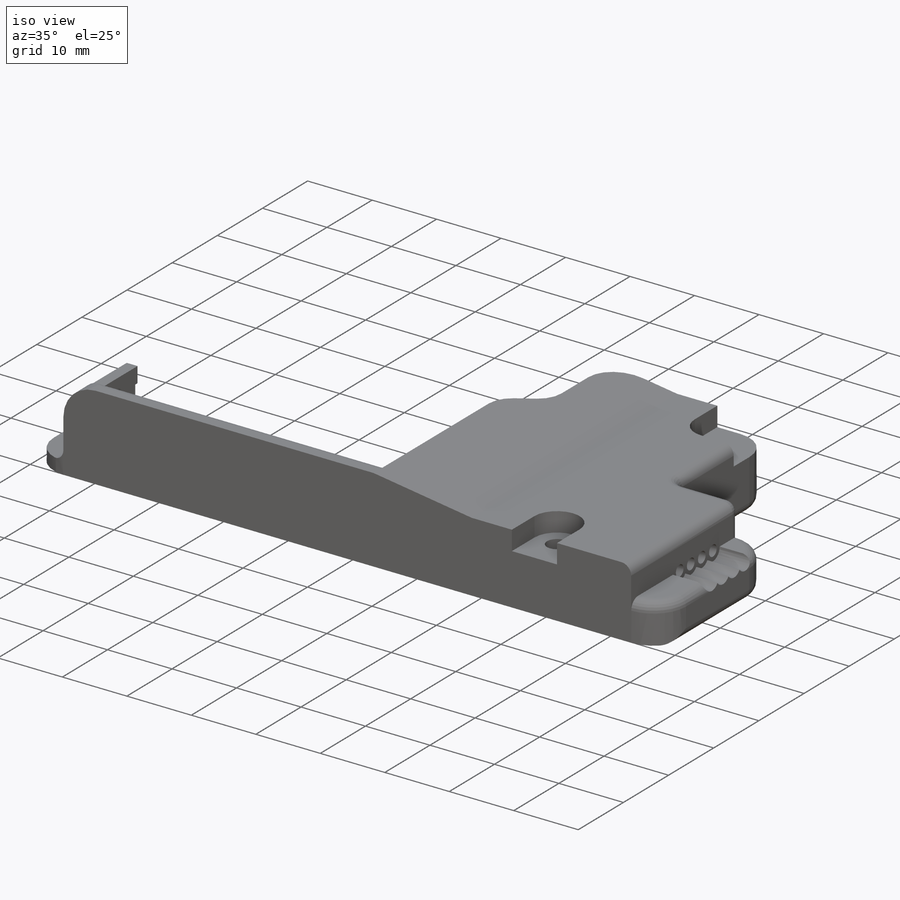
[diagram: iso view]
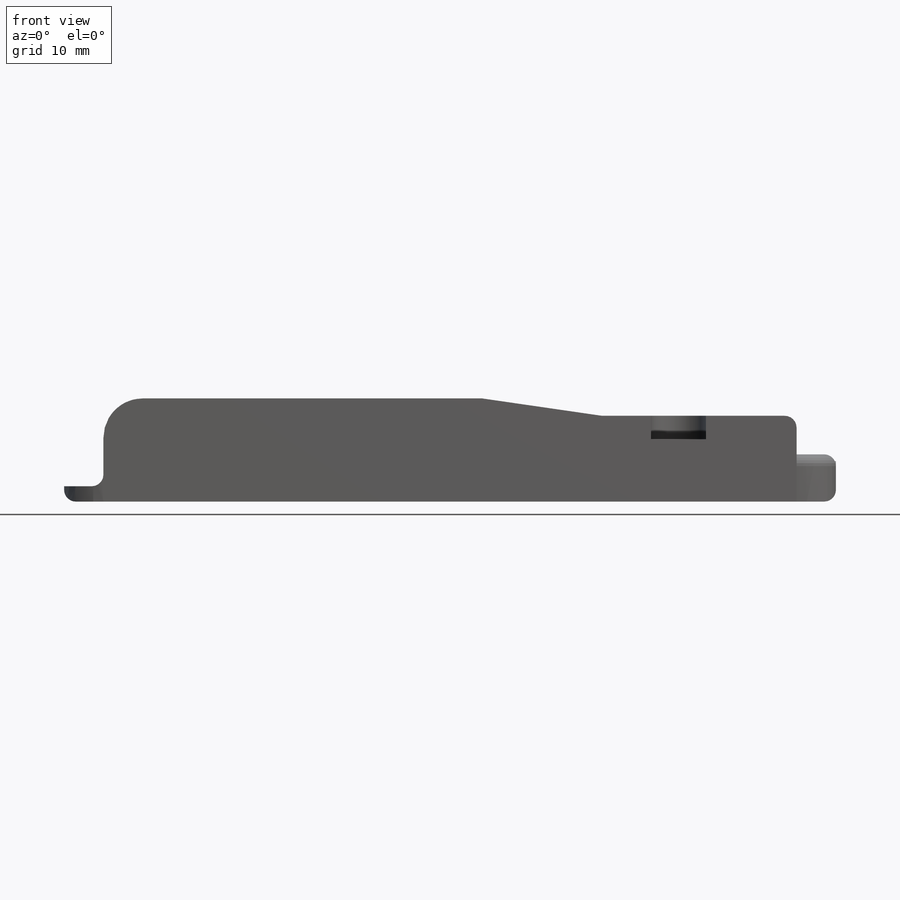
[diagram: front view]
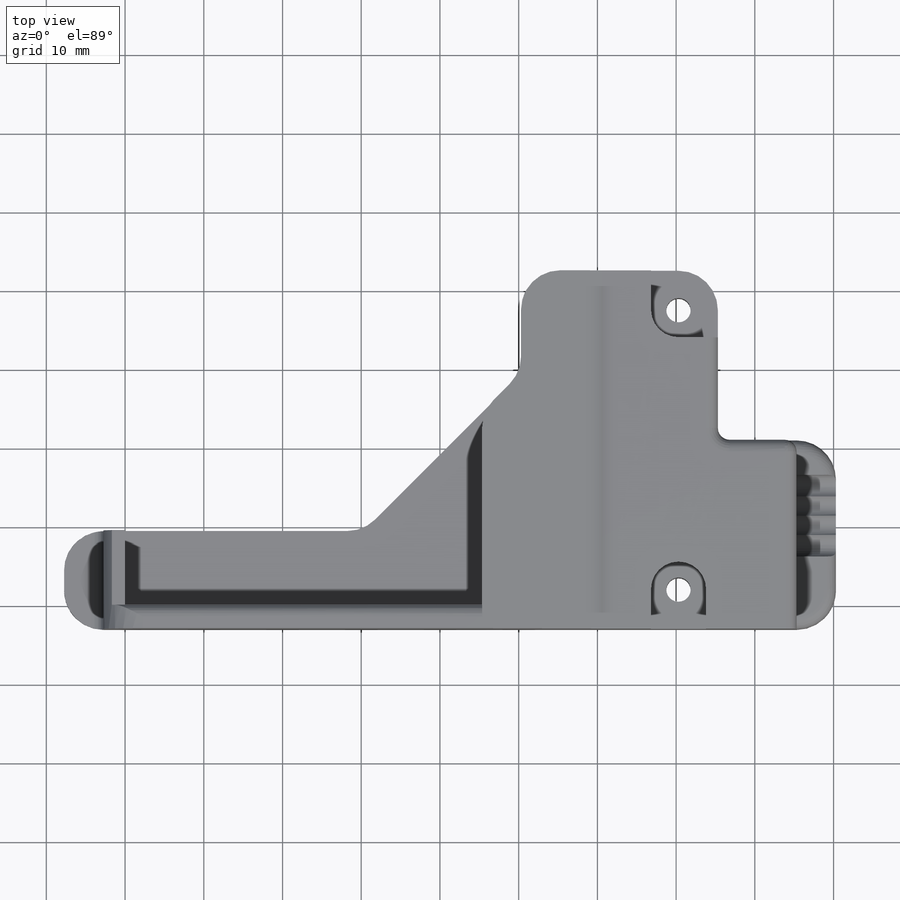
[diagram: top view]
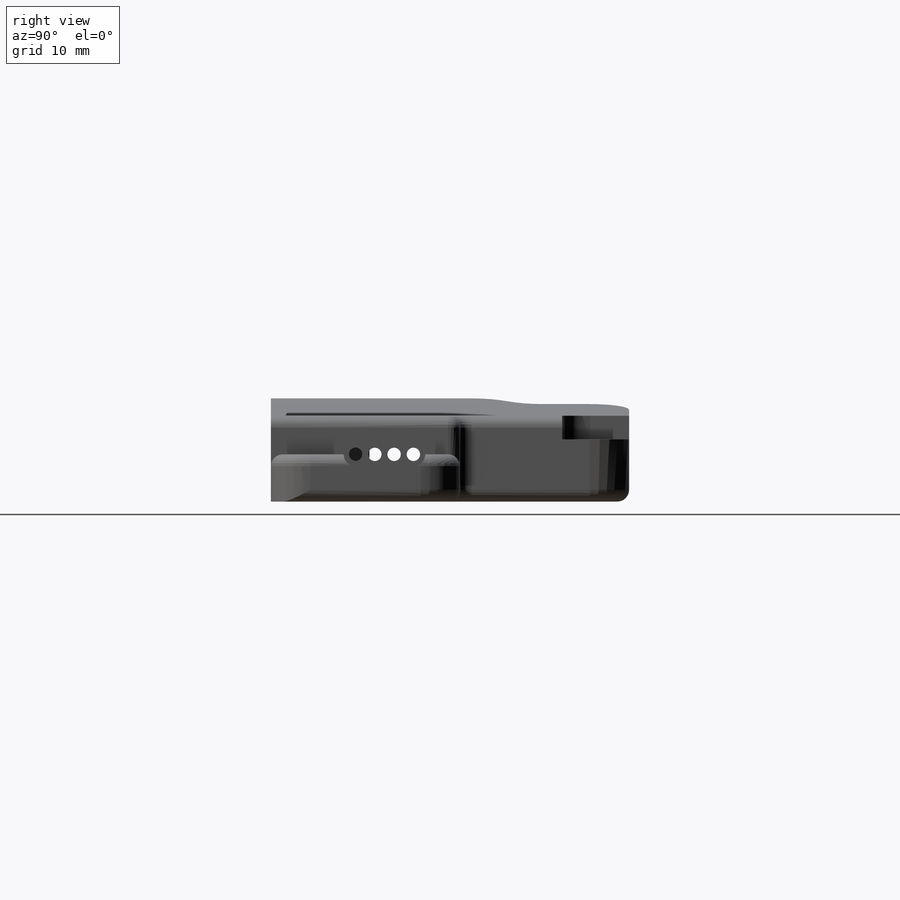
[diagram: right view]
SOLIDWORKS PART (.sldprt)
format: sldprt  version: not decoded by parser v0  size: 678,912 bytes
history: native  units: mm
features: sketch x21, cut_extrude x13, extrude x8, plane x3, fillet x2, material x1 (+12 scaffold rows collapsed; 1 parser-record rows omitted)
feature tree (61):
  scaffold x12  (default folders/planes/origin — collapsed)
  material  "Material <not specified>"
  sketch  "Sketch1"  dims[c1.D1=4.8mm c1.D2=62.5mm c1.D3=5.0mm c1.D4=0.35mm c1.D5=2.4mm c1.D6=2.4mm c1.D7=2.4mm c2.D6=2.4mm c2.D8=3.0mm c2.D9=2.4mm c2.D10=6.0mm c2.D2=2.4mm c3.D8=2.4mm c3.D11=2.5mm c3.D12=63.25mm c3.D3=4.5mm]
  extrude  "Boss-Extrude1"  Depth=39.5mm
  sketch  "Sketch2"
  extrude  "Boss-Extrude2"  Depth=3mm
  sketch  "Sketch5"  dims[D1=15.0mm]
  extrude  "Boss-Extrude3"  Depth=3mm
  sketch  "Sketch6"  dims[c1.D1=30.0mm c1.D2=~36.02727mm c2.D2=45.0deg c2.D3=10.0mm]
  cut_extrude  "Cut-Extrude3"  [1 undecoded]
  sketch  "Sketch7"  dims[D1=5.0mm]
  cut_extrude  "Cut-Extrude6"  [1 undecoded]
  sketch  "Sketch8"
  cut_extrude  "Cut-Extrude7"  [1 undecoded]
  sketch  "Sketch9"  dims[D1=4.0mm D2=1.0mm D3=1.0mm D4=2.8mm]
  cut_extrude  "Cut-Extrude8"  Depth=2mm
  sketch  "Sketch10"  dims[D1=11.8mm D2=12.0mm D3=5.0mm]
  cut_extrude  "Cut-Extrude9"  [1 undecoded]
  sketch  "Sketch11"  dims[c1.D1=~7.330127mm c2.D1=45.0deg c3.D1=~5.385963mm c4.D1=90.0deg c5.D1=3.0mm c5.D2=~4.330127mm c6.D2=45.0deg]
  cut_extrude  "Cut-Extrude15"  Depth=2.4mm
  sketch  "Sketch14"
  cut_extrude  "Cut-Extrude16"  Depth=3mm
  sketch  "Sketch17"  dims[D1=3.0mm]
  cut_extrude  "Cut-Extrude18"  [1 undecoded]
  sketch  "Sketch18"  dims[D1=1.8mm D2=0.4mm]
  extrude  "Boss-Extrude4"  Depth=3.5mm
  sketch  "Sketch19"  dims[D1=24.0mm]
  extrude  "Boss-Extrude5"  Depth=25mm
  sketch  "Sketch20"  dims[D5=1.7mm D2=7.75mm D3=2.45mm D4=2.0mm D1=4.0]
  cut_extrude  "Cut-Extrude19"  [1 undecoded]
  sketch  "Sketch21"  dims[D1=5.0mm]
  cut_extrude  "Cut-Extrude20"  [1 undecoded]
  sketch  "Sketch22"  dims[c1.D1=2.45mm c1.D2=2.45mm c2.D1=3.0mm]
  cut_extrude  "Cut-Extrude21"  [1 undecoded]
  sketch  "Sketch23"
  extrude  "Boss-Extrude6"  Depth=10mm
  sketch  "Sketch26"  dims[D1=0.0mm]
  extrude  "Boss-Extrude7"  Depth=1.6mm
  sketch  "Sketch24"  dims[D4=3.1mm D1=5.0mm D2=5.0mm D3=5.0mm]
  cut_extrude  "Cut-Extrude22"  [1 undecoded]
  sketch  "Sketch25"  dims[c1.D1=7.0mm c1.D2=3.5mm c2.D1=~5.000366mm c3.D1=~0.692862deg c4.D1=7.0mm]
  cut_extrude  "Cut-Extrude23"  Depth=3mm
  sketch  "Sketch27"
  extrude  "Boss-Extrude8"  Depth=5mm
  fillet  "Fillet1"  Radius=5mm
  fillet  "Fillet3"  Radius=1.5mm
  parser-record x1  (decoder bookkeeping rows leaked as tree rows — omitted from the tree; the rows remain in map.json)
  plane  "Plane1"
  plane  "Plane2"
  plane  "Center plane"
decode coverage: 30 of 44 modeling features carry decoded parameters
note: ~ marks probable driven/reference dimensions
note: 9 parameter values undecoded
summary: no parameter record found for 9 features
note: suppression state not decoded; provenance and decode notes live in map.json
